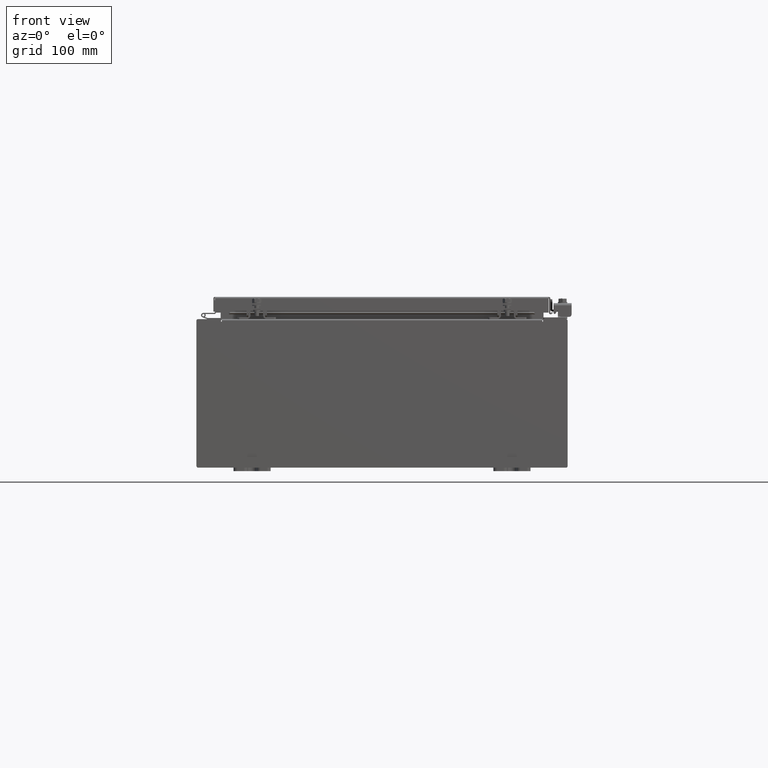
[diagram: clean part render]
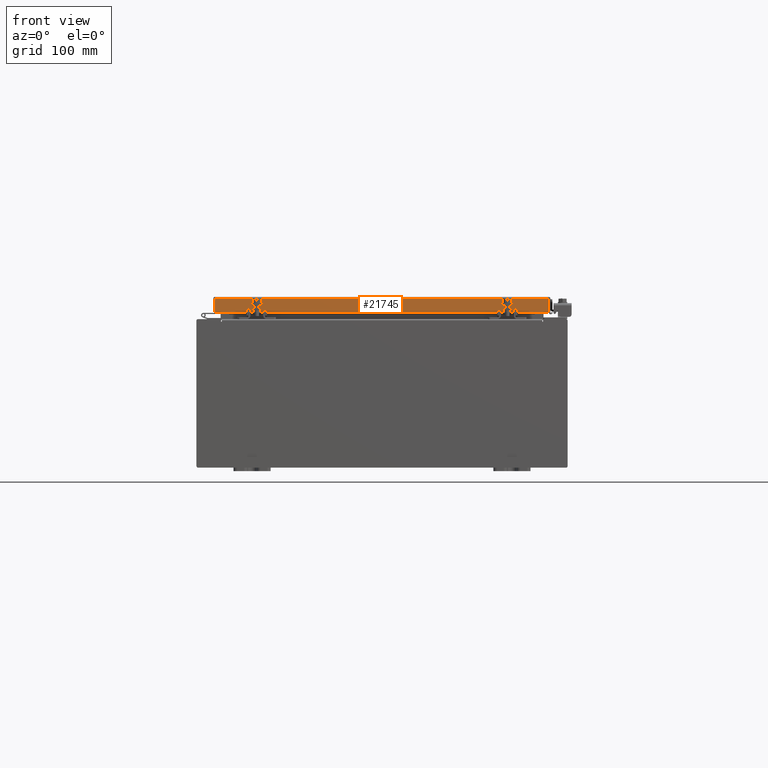
[diagram: same view with one face highlighted and labeled with its STEP entity id]
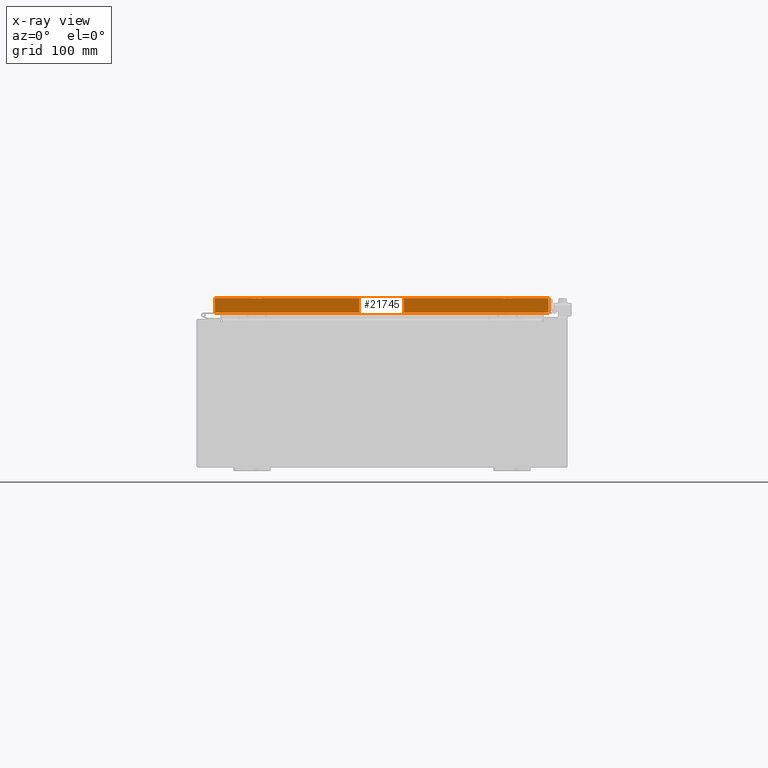
[diagram: x-ray of the same camera — body ghosted, the highlighted face saturated]
A machine part, front view. The second image highlights one B-rep face of the part: STEP entity #21745.
The next image is the same camera in x-ray: the body ghosted, the highlighted face saturated — about 0% of this face is hidden behind the body in this view.
In plain terms, the highlighted planar face has unit normal (0, 1, -0).
Its self-contained STEP definition (entity closure, byte-faithful):
#1174 = DIRECTION ( 'NONE',  ( -1.000000000000000000, 1.203722403024570700E-016, 1.203722403024571000E-016 ) ) ;
#2280 = ORIENTED_EDGE ( 'NONE', *, *, #24341, .F. ) ;
#2532 = VECTOR ( 'NONE', #23980, 39.37007874015748100 ) ;
#2606 = VECTOR ( 'NONE', #1174, 39.37007874015748100 ) ;
#2948 = VERTEX_POINT ( 'NONE', #29553 ) ;
#5443 = EDGE_CURVE ( 'NONE', #18543, #2948, #23099, .T. ) ;
#12697 = LINE ( 'NONE', #13180, #27233 ) ;
#13062 = DIRECTION ( 'NONE',  ( 0.0000000000000000000, -2.818880942772360100E-015, -1.000000000000000000 ) ) ;
#13180 = CARTESIAN_POINT ( 'NONE',  ( -8.989157864376265300, -14.09399999999999900, 3.999012166344521600E-014 ) ) ;
#13629 = FACE_OUTER_BOUND ( 'NONE', #31521, .T. ) ;
#13786 = VECTOR ( 'NONE', #28928, 39.37007874015748100 ) ;
#13977 = CARTESIAN_POINT ( 'NONE',  ( -8.989157864376265300, -14.09400000000000100, -0.8499999999999975400 ) ) ;
#14131 = EDGE_CURVE ( 'NONE', #33592, #20726, #15621, .T. ) ;
#14331 = VERTEX_POINT ( 'NONE', #13977 ) ;
#14963 = CARTESIAN_POINT ( 'NONE',  ( -8.989157864376265300, -14.09399999999999900, -0.08770000000000007000 ) ) ;
#15230 = CARTESIAN_POINT ( 'NONE',  ( 8.239157864376270600, -14.09399999999999900, -0.8500000000000006400 ) ) ;
#15321 = DIRECTION ( 'NONE',  ( -1.000000000000000000, 0.0000000000000000000, 0.0000000000000000000 ) ) ;
#15621 = LINE ( 'NONE', #19832, #13786 ) ;
#15704 = CARTESIAN_POINT ( 'NONE',  ( 8.989157864376270600, -14.09400000000000300, -0.8499999999999996400 ) ) ;
#15763 = EDGE_CURVE ( 'NONE', #2948, #27010, #22768, .T. ) ;
#18543 = VERTEX_POINT ( 'NONE', #15704 ) ;
#18987 = AXIS2_PLACEMENT_3D ( 'NONE', #22030, #21789, #21784 ) ;
#19073 = CARTESIAN_POINT ( 'NONE',  ( -8.239157864376267100, -14.09399999999999900, -0.8500000000000006400 ) ) ;
#19832 = CARTESIAN_POINT ( 'NONE',  ( 9.078000000000001200, -14.09400000000000100, -0.08770000000000007000 ) ) ;
#20726 = VERTEX_POINT ( 'NONE', #28090 ) ;
#20795 = ORIENTED_EDGE ( 'NONE', *, *, #25285, .F. ) ;
#21745 = ADVANCED_FACE ( 'NONE', ( #13629 ), #22395, .F. ) ;
#21784 = DIRECTION ( 'NONE',  ( 0.0000000000000000000, 2.818880942772360100E-015, 1.000000000000000000 ) ) ;
#21789 = DIRECTION ( 'NONE',  ( 1.203722403024567300E-016, 1.000000000000000000, -2.818880942772360100E-015 ) ) ;
#21860 = VECTOR ( 'NONE', #15321, 39.37007874015748100 ) ;
#22030 = CARTESIAN_POINT ( 'NONE',  ( -1.696526354822824800E-015, -14.09399999999999900, 3.999012166344521600E-014 ) ) ;
#22395 = PLANE ( 'NONE',  #18987 ) ;
#22693 = VECTOR ( 'NONE', #27386, 39.37007874015748100 ) ;
#22768 = LINE ( 'NONE', #15230, #21860 ) ;
#23099 = LINE ( 'NONE', #27267, #22693 ) ;
#23538 = ORIENTED_EDGE ( 'NONE', *, *, #27082, .T. ) ;
#23980 = DIRECTION ( 'NONE',  ( 0.0000000000000000000, -2.818880942772360100E-015, -1.000000000000000000 ) ) ;
#24102 = CARTESIAN_POINT ( 'NONE',  ( 8.989157864376270600, -14.09400000000000100, -0.07469999999999978000 ) ) ;
#24341 = EDGE_CURVE ( 'NONE', #27010, #14331, #26524, .T. ) ;
#25285 = EDGE_CURVE ( 'NONE', #20726, #18543, #25537, .T. ) ;
#25537 = LINE ( 'NONE', #24102, #2532 ) ;
#26524 = LINE ( 'NONE', #27285, #2606 ) ;
#27010 = VERTEX_POINT ( 'NONE', #19073 ) ;
#27082 = EDGE_CURVE ( 'NONE', #33592, #14331, #12697, .T. ) ;
#27233 = VECTOR ( 'NONE', #13062, 39.37007874015748100 ) ;
#27267 = CARTESIAN_POINT ( 'NONE',  ( 9.078000000000001200, -14.09400000000000300, -0.8499999999999996400 ) ) ;
#27285 = CARTESIAN_POINT ( 'NONE',  ( 9.078000000000001200, -14.09400000000000300, -0.8499999999999996400 ) ) ;
#27386 = DIRECTION ( 'NONE',  ( -1.000000000000000000, 1.203722403024570700E-016, 1.203722403024571000E-016 ) ) ;
#28090 = CARTESIAN_POINT ( 'NONE',  ( 8.989157864376256400, -14.09400000000000100, -0.08770000000000007000 ) ) ;
#28508 = ORIENTED_EDGE ( 'NONE', *, *, #5443, .F. ) ;
#28928 = DIRECTION ( 'NONE',  ( 1.000000000000000000, -1.203722403024567300E-016, -9.633926942233120500E-046 ) ) ;
#29018 = ORIENTED_EDGE ( 'NONE', *, *, #14131, .F. ) ;
#29553 = CARTESIAN_POINT ( 'NONE',  ( 8.239157864376270600, -14.09399999999999900, -0.8500000000000006400 ) ) ;
#31521 = EDGE_LOOP ( 'NONE', ( #29018, #23538, #2280, #31726, #28508, #20795 ) ) ;
#31726 = ORIENTED_EDGE ( 'NONE', *, *, #15763, .F. ) ;
#33592 = VERTEX_POINT ( 'NONE', #14963 ) ;